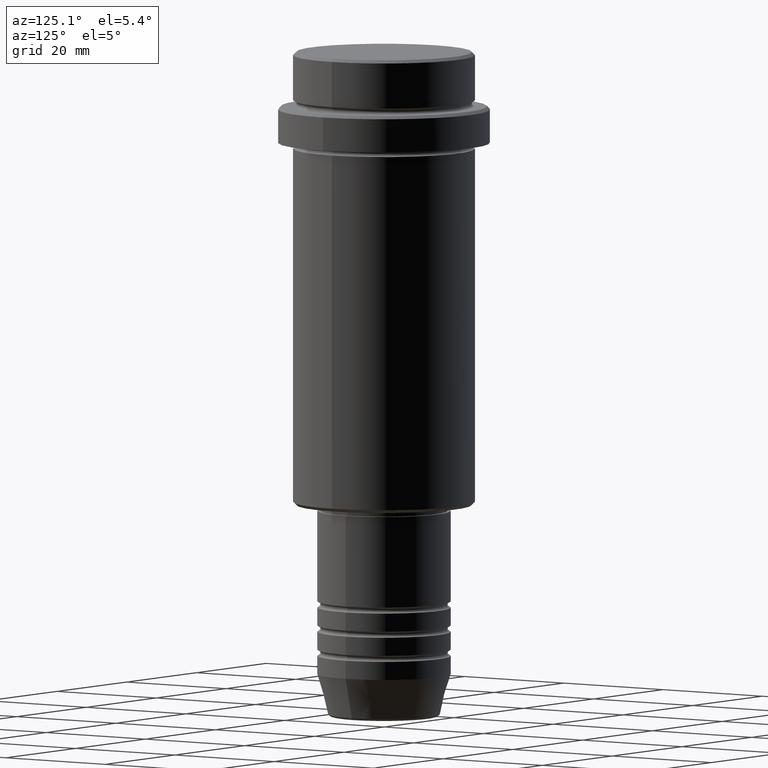
[diagram: clean part render]
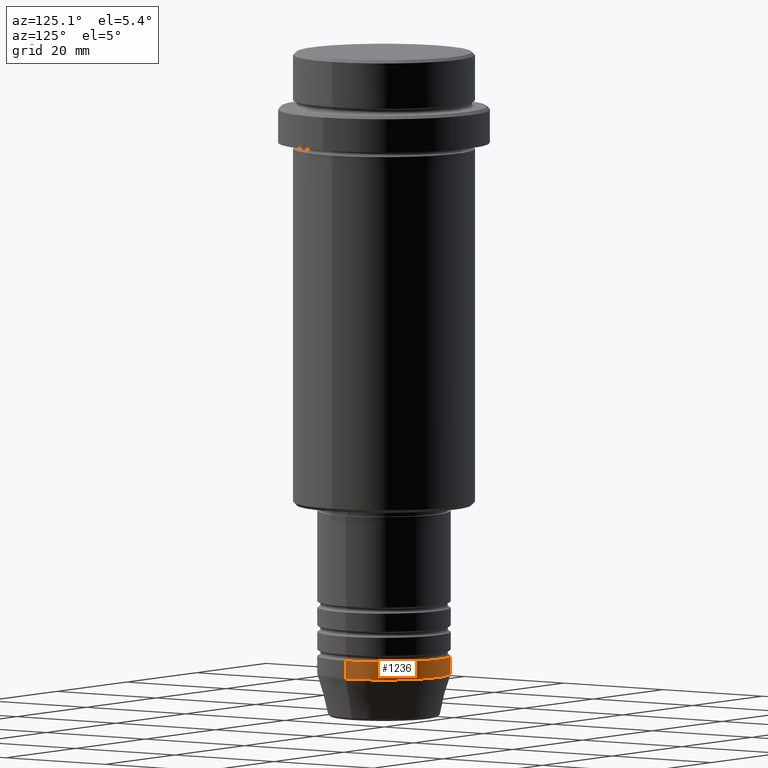
[diagram: same view with one face highlighted and labeled with its STEP entity id]
A machine part, auxiliary view. The second image highlights one B-rep face of the part: STEP entity #1236.
In plain terms, the highlighted cylindrical surface (partial cylindrical patch) has radius 11 mm, axis along (-0, -0, 1).
Its self-contained STEP definition (entity closure, byte-faithful):
#68 = ORIENTED_EDGE ( 'NONE', *, *, #195, .T. ) ;
#87 = ORIENTED_EDGE ( 'NONE', *, *, #750, .F. ) ;
#107 = CARTESIAN_POINT ( 'NONE',  ( -11.00000000000000000, 1.347111479062088405E-15, -100.0000000000000000 ) ) ;
#136 = CARTESIAN_POINT ( 'NONE',  ( 0.000000000000000000, 0.000000000000000000, -103.0000000000000142 ) ) ;
#152 = AXIS2_PLACEMENT_3D ( 'NONE', #136, #243, #1319 ) ;
#180 = AXIS2_PLACEMENT_3D ( 'NONE', #1024, #1057, #422 ) ;
#186 = VERTEX_POINT ( 'NONE', #1144 ) ;
#195 = EDGE_CURVE ( 'NONE', #186, #503, #933, .T. ) ;
#209 = DIRECTION ( 'NONE',  ( 1.000000000000000000, 0.000000000000000000, 0.000000000000000000 ) ) ;
#213 = CARTESIAN_POINT ( 'NONE',  ( 0.000000000000000000, 0.000000000000000000, 0.000000000000000000 ) ) ;
#243 = DIRECTION ( 'NONE',  ( -0.000000000000000000, -0.000000000000000000, 1.000000000000000000 ) ) ;
#323 = DIRECTION ( 'NONE',  ( -0.000000000000000000, -0.000000000000000000, 1.000000000000000000 ) ) ;
#337 = CIRCLE ( 'NONE', #152, 11.00000000000000000 ) ;
#422 = DIRECTION ( 'NONE',  ( 1.000000000000000000, 0.000000000000000000, 0.000000000000000000 ) ) ;
#432 = DIRECTION ( 'NONE',  ( -0.000000000000000000, -0.000000000000000000, 1.000000000000000000 ) ) ;
#448 = ORIENTED_EDGE ( 'NONE', *, *, #615, .F. ) ;
#503 = VERTEX_POINT ( 'NONE', #107 ) ;
#534 = EDGE_CURVE ( 'NONE', #1257, #186, #337, .T. ) ;
#615 = EDGE_CURVE ( 'NONE', #954, #503, #1327, .T. ) ;
#635 = DIRECTION ( 'NONE',  ( -0.000000000000000000, -0.000000000000000000, 1.000000000000000000 ) ) ;
#668 = CARTESIAN_POINT ( 'NONE',  ( 11.00000000000000000, 0.000000000000000000, -103.0000000000000142 ) ) ;
#750 = EDGE_CURVE ( 'NONE', #1257, #954, #967, .T. ) ;
#766 = FACE_OUTER_BOUND ( 'NONE', #866, .T. ) ;
#866 = EDGE_LOOP ( 'NONE', ( #1200, #68, #448, #87 ) ) ;
#933 = LINE ( 'NONE', #1343, #1288 ) ;
#954 = VERTEX_POINT ( 'NONE', #1023 ) ;
#967 = LINE ( 'NONE', #1380, #1107 ) ;
#1023 = CARTESIAN_POINT ( 'NONE',  ( 11.00000000000000000, 0.000000000000000000, -100.0000000000000000 ) ) ;
#1024 = CARTESIAN_POINT ( 'NONE',  ( 0.000000000000000000, 0.000000000000000000, -100.0000000000000000 ) ) ;
#1057 = DIRECTION ( 'NONE',  ( -0.000000000000000000, -0.000000000000000000, 1.000000000000000000 ) ) ;
#1107 = VECTOR ( 'NONE', #323, 1000.000000000000000 ) ;
#1131 = AXIS2_PLACEMENT_3D ( 'NONE', #213, #432, #209 ) ;
#1144 = CARTESIAN_POINT ( 'NONE',  ( -11.00000000000000000, 1.347111479062088405E-15, -103.0000000000000142 ) ) ;
#1184 = CYLINDRICAL_SURFACE ( 'NONE', #1131, 11.00000000000000000 ) ;
#1200 = ORIENTED_EDGE ( 'NONE', *, *, #534, .T. ) ;
#1236 = ADVANCED_FACE ( 'NONE', ( #766 ), #1184, .T. ) ;
#1257 = VERTEX_POINT ( 'NONE', #668 ) ;
#1288 = VECTOR ( 'NONE', #635, 1000.000000000000000 ) ;
#1319 = DIRECTION ( 'NONE',  ( 1.000000000000000000, 0.000000000000000000, 0.000000000000000000 ) ) ;
#1327 = CIRCLE ( 'NONE', #180, 11.00000000000000000 ) ;
#1343 = CARTESIAN_POINT ( 'NONE',  ( -11.00000000000000000, 1.347111479062088405E-15, 0.000000000000000000 ) ) ;
#1380 = CARTESIAN_POINT ( 'NONE',  ( 11.00000000000000000, 0.000000000000000000, 0.000000000000000000 ) ) ;